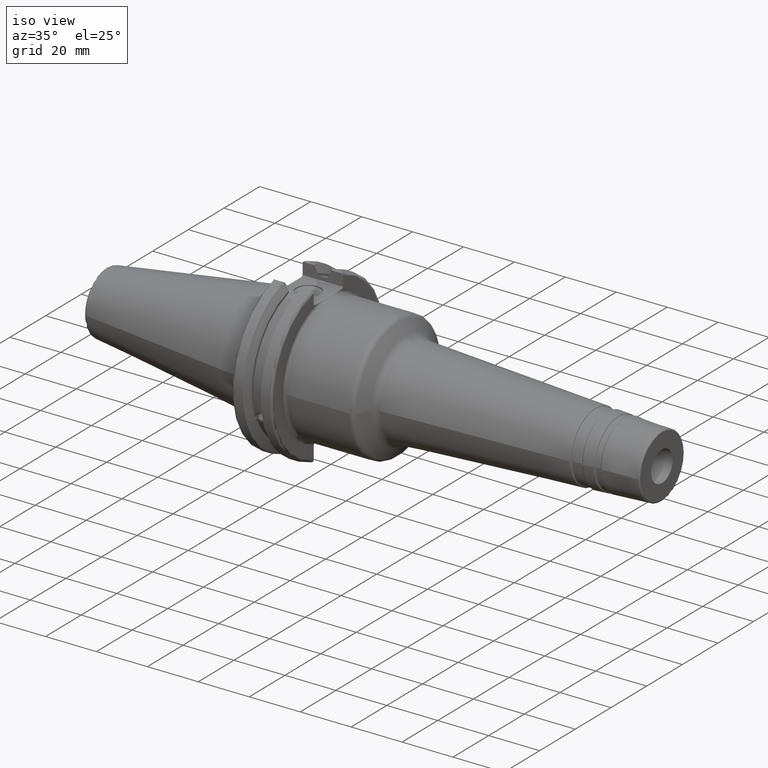
[diagram: clean part render]
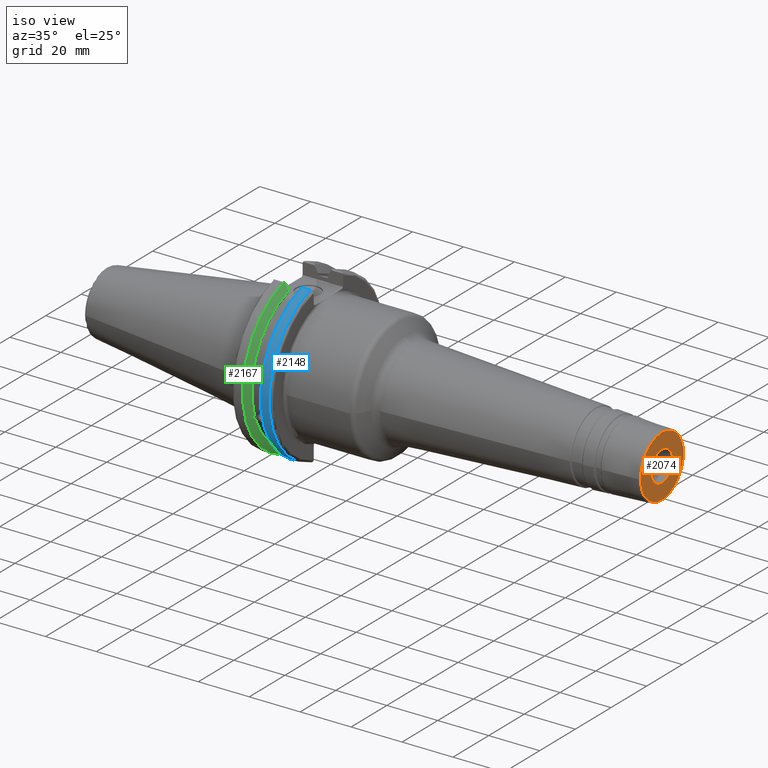
[diagram: same view with three faces highlighted in distinct colors, each labeled with its STEP entity id]
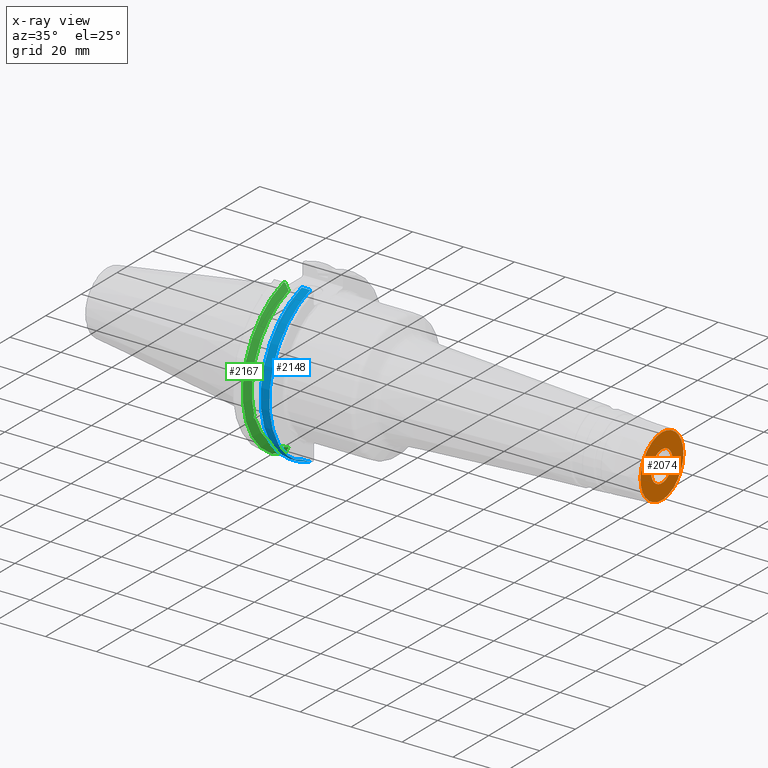
[diagram: x-ray of the same camera — body ghosted, the three highlighted faces saturated]
A machine part, iso view with three faces highlighted in distinct colors.
The next image is the same camera in x-ray (body ghosted, the three faces saturated) — at least one of them is partly hidden behind the body in this view.
Their STEP definitions:

[orange] entity #2074 — the highlighted planar face has unit normal (1, 0, 0).
#49=PLANE('',#2236);
#105=FACE_BOUND('',#302,.T.);
#193=FACE_OUTER_BOUND('',#301,.T.);
#301=EDGE_LOOP('',(#1441,#1442));
#302=EDGE_LOOP('',(#1443,#1444));
#634=CIRCLE('',#2226,12.0255177166426);
#639=CIRCLE('',#2231,12.0255177166426);
#643=CIRCLE('',#2237,6.00000000000001);
#644=CIRCLE('',#2238,6.00000000000001);
#811=VERTEX_POINT('',#3348);
#812=VERTEX_POINT('',#3349);
#819=VERTEX_POINT('',#3368);
#820=VERTEX_POINT('',#3369);
#1061=EDGE_CURVE('',#811,#812,#634,.T.);
#1066=EDGE_CURVE('',#812,#811,#639,.T.);
#1071=EDGE_CURVE('',#819,#820,#643,.T.);
#1072=EDGE_CURVE('',#820,#819,#644,.T.);
#1441=ORIENTED_EDGE('',*,*,#1061,.F.);
#1442=ORIENTED_EDGE('',*,*,#1066,.F.);
#1443=ORIENTED_EDGE('',*,*,#1071,.F.);
#1444=ORIENTED_EDGE('',*,*,#1072,.F.);
#2074=ADVANCED_FACE('',(#193,#105),#49,.T.);
#2226=AXIS2_PLACEMENT_3D('',#3350,#2570,#2571);
#2231=AXIS2_PLACEMENT_3D('',#3358,#2580,#2581);
#2236=AXIS2_PLACEMENT_3D('',#3367,#2591,#2592);
#2237=AXIS2_PLACEMENT_3D('',#3370,#2593,#2594);
#2238=AXIS2_PLACEMENT_3D('',#3371,#2595,#2596);
#2570=DIRECTION('center_axis',(-1.,0.,0.));
#2571=DIRECTION('ref_axis',(0.,-1.,1.83697019872103E-16));
#2580=DIRECTION('center_axis',(-1.,0.,0.));
#2581=DIRECTION('ref_axis',(0.,-1.,1.83697019872103E-16));
#2591=DIRECTION('center_axis',(1.,0.,0.));
#2592=DIRECTION('ref_axis',(0.,0.,-1.));
#2593=DIRECTION('center_axis',(1.,0.,0.));
#2594=DIRECTION('ref_axis',(0.,0.,-1.));
#2595=DIRECTION('center_axis',(1.,0.,0.));
#2596=DIRECTION('ref_axis',(0.,0.,-1.));
#3348=CARTESIAN_POINT('',(150.,12.0255177166426,-3.68175294494402E-15));
#3349=CARTESIAN_POINT('',(150.,-1.47270117797761E-15,12.0255177166426));
#3350=CARTESIAN_POINT('Origin',(150.,0.,0.));
#3358=CARTESIAN_POINT('Origin',(150.,0.,0.));
#3367=CARTESIAN_POINT('Origin',(150.,6.00000000000001,0.));
#3368=CARTESIAN_POINT('',(150.,6.00000000000001,0.));
#3369=CARTESIAN_POINT('',(150.,-6.00000000000001,-7.34788079488412E-16));
#3370=CARTESIAN_POINT('Origin',(150.,0.,0.));
#3371=CARTESIAN_POINT('Origin',(150.,0.,0.));

[blue] entity #2148 — the highlighted cylindrical surface (partial cylindrical patch) has radius 31.75 mm, axis along (1, 0, 0).
#175=CYLINDRICAL_SURFACE('',#2450,31.75);
#267=FACE_OUTER_BOUND('',#386,.T.);
#386=EDGE_LOOP('',(#1937,#1938,#1939,#1940));
#499=LINE('',#4159,#598);
#500=LINE('',#4161,#599);
#598=VECTOR('',#3100,10.);
#599=VECTOR('',#3103,10.);
#716=CIRCLE('',#2351,31.75);
#751=CIRCLE('',#2420,31.75);
#910=VERTEX_POINT('',#3693);
#911=VERTEX_POINT('',#3697);
#982=VERTEX_POINT('',#3998);
#983=VERTEX_POINT('',#4007);
#1191=EDGE_CURVE('',#911,#910,#716,.T.);
#1288=EDGE_CURVE('',#982,#983,#751,.T.);
#1336=EDGE_CURVE('',#983,#910,#499,.T.);
#1337=EDGE_CURVE('',#911,#982,#500,.T.);
#1937=ORIENTED_EDGE('',*,*,#1288,.F.);
#1938=ORIENTED_EDGE('',*,*,#1337,.F.);
#1939=ORIENTED_EDGE('',*,*,#1191,.T.);
#1940=ORIENTED_EDGE('',*,*,#1336,.F.);
#2148=ADVANCED_FACE('',(#267),#175,.T.);
#2351=AXIS2_PLACEMENT_3D('',#3698,#2849,#2850);
#2420=AXIS2_PLACEMENT_3D('',#4008,#3019,#3020);
#2450=AXIS2_PLACEMENT_3D('',#4160,#3101,#3102);
#2849=DIRECTION('center_axis',(1.,0.,0.));
#2850=DIRECTION('ref_axis',(0.,0.,-1.));
#3019=DIRECTION('center_axis',(1.,0.,0.));
#3020=DIRECTION('ref_axis',(0.,-1.,1.60812264967664E-16));
#3100=DIRECTION('',(-1.,0.,0.));
#3101=DIRECTION('center_axis',(1.,0.,0.));
#3102=DIRECTION('ref_axis',(0.,-1.,1.22464679914735E-16));
#3103=DIRECTION('',(1.,0.,0.));
#3693=CARTESIAN_POINT('',(14.6602667690756,-8.67204822802686,-30.5427254764662));
#3697=CARTESIAN_POINT('',(14.6602667690756,-8.67204822802685,30.5427254764662));
#3698=CARTESIAN_POINT('Origin',(14.6602667690756,0.,0.));
#3998=CARTESIAN_POINT('',(18.05,-8.67204822802685,30.5427254764662));
#4007=CARTESIAN_POINT('',(18.05,-8.67204822802686,-30.5427254764662));
#4008=CARTESIAN_POINT('Origin',(18.05,0.,0.));
#4159=CARTESIAN_POINT('',(16.8551333845378,-8.67204822802686,-30.5427254764662));
#4160=CARTESIAN_POINT('Origin',(16.8551333845378,0.,0.));
#4161=CARTESIAN_POINT('',(16.8551333845378,-8.67204822802685,30.5427254764662));

[green] entity #2167 — the highlighted conical surface has half-angle 60 deg.
#25=(
BOUNDED_CURVE()
B_SPLINE_CURVE(2,(#4029,#4030,#4031),.UNSPECIFIED.,.F.,.F.)
B_SPLINE_CURVE_WITH_KNOTS((3,3),(0.,0.276549142796136),.UNSPECIFIED.)
CURVE()
GEOMETRIC_REPRESENTATION_ITEM()
RATIONAL_B_SPLINE_CURVE((1.,1.00095203903316,1.00031614444813))
REPRESENTATION_ITEM('')
);
#26=(
BOUNDED_CURVE()
B_SPLINE_CURVE(2,(#4041,#4042,#4043),.UNSPECIFIED.,.F.,.F.)
B_SPLINE_CURVE_WITH_KNOTS((3,3),(0.0550586467392022,0.33160778953585),
 .UNSPECIFIED.)
CURVE()
GEOMETRIC_REPRESENTATION_ITEM()
RATIONAL_B_SPLINE_CURVE((1.00031614445148,1.00095203904325,1.))
REPRESENTATION_ITEM('')
);
#27=(
BOUNDED_CURVE()
B_SPLINE_CURVE(2,(#4076,#4077,#4078),.UNSPECIFIED.,.F.,.F.)
B_SPLINE_CURVE_WITH_KNOTS((3,3),(0.,0.0639048713676282),.UNSPECIFIED.)
CURVE()
GEOMETRIC_REPRESENTATION_ITEM()
RATIONAL_B_SPLINE_CURVE((1.,1.00028444218284,1.00047644010574))
REPRESENTATION_ITEM('')
);
#28=(
BOUNDED_CURVE()
B_SPLINE_CURVE(2,(#4084,#4085,#4086),.UNSPECIFIED.,.F.,.F.)
B_SPLINE_CURVE_WITH_KNOTS((3,3),(0.329353533631205,0.393258405001025),
 .UNSPECIFIED.)
CURVE()
GEOMETRIC_REPRESENTATION_ITEM()
RATIONAL_B_SPLINE_CURVE((1.00047644010572,1.00028444218283,1.))
REPRESENTATION_ITEM('')
);
#128=B_SPLINE_CURVE_WITH_KNOTS('',3,(#3620,#3621,#3622,#3623,#3624,#3625,
#3626,#3627,#3628,#3629,#3630,#3631,#3632,#3633),.UNSPECIFIED.,.F.,.F.,
(4,2,2,2,2,2,4),(0.451995700189024,0.464547828547662,0.504528771685167,
0.544509714822672,0.584490657960178,0.624471601097683,0.63702372945632),
 .UNSPECIFIED.);
#286=FACE_OUTER_BOUND('',#407,.T.);
#407=EDGE_LOOP('',(#2029,#2030,#2031,#2032,#2033,#2034,#2035,#2036));
#720=CIRCLE('',#2358,28.9593772964944);
#753=CIRCLE('',#2427,31.75);
#779=CIRCLE('',#2484,28.9593772964944);
#895=VERTEX_POINT('',#3617);
#896=VERTEX_POINT('',#3619);
#916=VERTEX_POINT('',#3717);
#985=VERTEX_POINT('',#4026);
#986=VERTEX_POINT('',#4028);
#989=VERTEX_POINT('',#4040);
#993=VERTEX_POINT('',#4074);
#994=VERTEX_POINT('',#4080);
#1172=EDGE_CURVE('',#896,#895,#128,.T.);
#1199=EDGE_CURVE('',#896,#916,#720,.T.);
#1293=EDGE_CURVE('',#986,#985,#25,.T.);
#1299=EDGE_CURVE('',#989,#916,#26,.T.);
#1307=EDGE_CURVE('',#993,#985,#27,.T.);
#1309=EDGE_CURVE('',#993,#994,#753,.T.);
#1310=EDGE_CURVE('',#989,#994,#28,.T.);
#1360=EDGE_CURVE('',#986,#895,#779,.T.);
#2029=ORIENTED_EDGE('',*,*,#1172,.T.);
#2030=ORIENTED_EDGE('',*,*,#1360,.F.);
#2031=ORIENTED_EDGE('',*,*,#1293,.T.);
#2032=ORIENTED_EDGE('',*,*,#1307,.F.);
#2033=ORIENTED_EDGE('',*,*,#1309,.T.);
#2034=ORIENTED_EDGE('',*,*,#1310,.F.);
#2035=ORIENTED_EDGE('',*,*,#1299,.T.);
#2036=ORIENTED_EDGE('',*,*,#1199,.F.);
#2062=CONICAL_SURFACE('',#2483,30.3546886482472,1.0471975511966);
#2167=ADVANCED_FACE('',(#286),#2062,.T.);
#2358=AXIS2_PLACEMENT_3D('',#3718,#2865,#2866);
#2427=AXIS2_PLACEMENT_3D('',#4082,#3044,#3045);
#2483=AXIS2_PLACEMENT_3D('',#4214,#3175,#3176);
#2484=AXIS2_PLACEMENT_3D('',#4215,#3177,#3178);
#2865=DIRECTION('center_axis',(1.,0.,0.));
#2866=DIRECTION('ref_axis',(0.,0.,-1.));
#3044=DIRECTION('center_axis',(1.,0.,0.));
#3045=DIRECTION('ref_axis',(0.,0.,-1.));
#3175=DIRECTION('center_axis',(-1.,0.,0.));
#3176=DIRECTION('ref_axis',(0.,-1.,-1.22464679914735E-16));
#3177=DIRECTION('center_axis',(1.,0.,0.));
#3178=DIRECTION('ref_axis',(0.,0.,-1.));
#3617=CARTESIAN_POINT('',(9.2191,-27.4956274489925,-9.09043478536245));
#3619=CARTESIAN_POINT('',(9.2191,-26.9060914640648,-10.7101715919071));
#3620=CARTESIAN_POINT('Ctrl Pts',(9.2191,-26.9060914640648,-10.7101715919071));
#3621=CARTESIAN_POINT('Ctrl Pts',(9.20497959280038,-26.9406927482839,-10.6893765730703));
#3622=CARTESIAN_POINT('Ctrl Pts',(9.19150701821434,-26.9744191989197,-10.6676007180673));
#3623=CARTESIAN_POINT('Ctrl Pts',(9.13811855884095,-27.1113422433189,-10.5723885976054));
#3624=CARTESIAN_POINT('Ctrl Pts',(9.09998029158246,-27.2180531796526,-10.4801333026531));
#3625=CARTESIAN_POINT('Ctrl Pts',(9.04778935539424,-27.3968610665578,-10.2639559818059));
#3626=CARTESIAN_POINT('Ctrl Pts',(9.0341,-27.4684373304961,-10.139516340139));
#3627=CARTESIAN_POINT('Ctrl Pts',(9.0341,-27.559599249844,-9.8890510252165));
#3628=CARTESIAN_POINT('Ctrl Pts',(9.04778935539424,-27.5847569104122,-9.74771639360671));
#3629=CARTESIAN_POINT('Ctrl Pts',(9.09998029158246,-27.5867382255984,-9.46717946402648));
#3630=CARTESIAN_POINT('Ctrl Pts',(9.13811855884095,-27.5642934663232,-9.32791534028656));
#3631=CARTESIAN_POINT('Ctrl Pts',(9.19150701821434,-27.5206055003512,-9.16696618806877));
#3632=CARTESIAN_POINT('Ctrl Pts',(9.20497959280038,-27.5087667900418,-9.12860597076218));
#3633=CARTESIAN_POINT('Ctrl Pts',(9.2191,-27.4956274489925,-9.09043478536245));
#3717=CARTESIAN_POINT('',(9.2191,-8.19,-27.7771386827498));
#3718=CARTESIAN_POINT('Origin',(9.2191,0.,0.));
#4026=CARTESIAN_POINT('',(7.88668530351257,-8.19,30.1755016258903));
#4028=CARTESIAN_POINT('',(9.2191,-8.19,27.7771386827498));
#4029=CARTESIAN_POINT('Ctrl Pts',(9.2191,-8.19,27.7771386827498));
#4030=CARTESIAN_POINT('Ctrl Pts',(8.58046356152393,-8.19,28.9303689539705));
#4031=CARTESIAN_POINT('Ctrl Pts',(7.88668530351257,-8.19,30.1755016258903));
#4040=CARTESIAN_POINT('',(7.88668530351256,-8.19,-30.1755016258903));
#4041=CARTESIAN_POINT('Ctrl Pts',(7.88668530351256,-8.19,-30.1755016258903));
#4042=CARTESIAN_POINT('Ctrl Pts',(8.5804635615235,-8.19,-28.9303689539712));
#4043=CARTESIAN_POINT('Ctrl Pts',(9.2191,-8.19,-27.7771386827498));
#4074=CARTESIAN_POINT('',(7.60793323092436,-8.67204822802685,30.5427254764662));
#4076=CARTESIAN_POINT('Ctrl Pts',(7.60793323092436,-8.67204822802686,30.5427254764662));
#4077=CARTESIAN_POINT('Ctrl Pts',(7.74899148121626,-8.42917748262648,30.357706789263));
#4078=CARTESIAN_POINT('Ctrl Pts',(7.88668530351257,-8.19,30.1755016258903));
#4080=CARTESIAN_POINT('',(7.60793323092436,-8.67204822802685,-30.5427254764662));
#4082=CARTESIAN_POINT('Origin',(7.60793323092436,0.,0.));
#4084=CARTESIAN_POINT('Ctrl Pts',(7.88668530351256,-8.19,-30.1755016258903));
#4085=CARTESIAN_POINT('Ctrl Pts',(7.74899148121159,-8.42917748263467,-30.3577067892692));
#4086=CARTESIAN_POINT('Ctrl Pts',(7.60793323092435,-8.67204822802687,-30.5427254764662));
#4214=CARTESIAN_POINT('Origin',(8.41351661546218,0.,0.));
#4215=CARTESIAN_POINT('Origin',(9.2191,0.,0.));